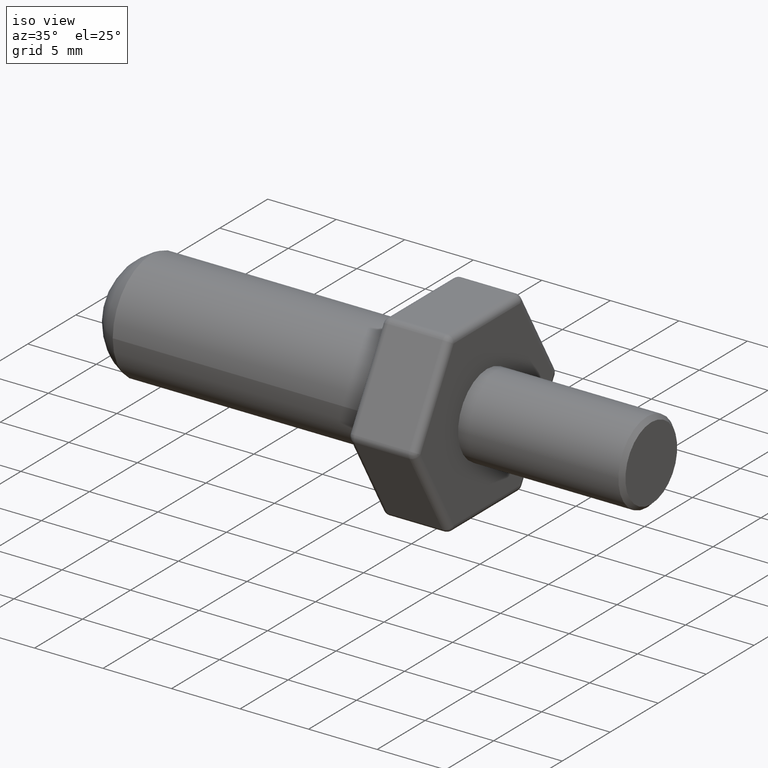
[diagram: clean part render]
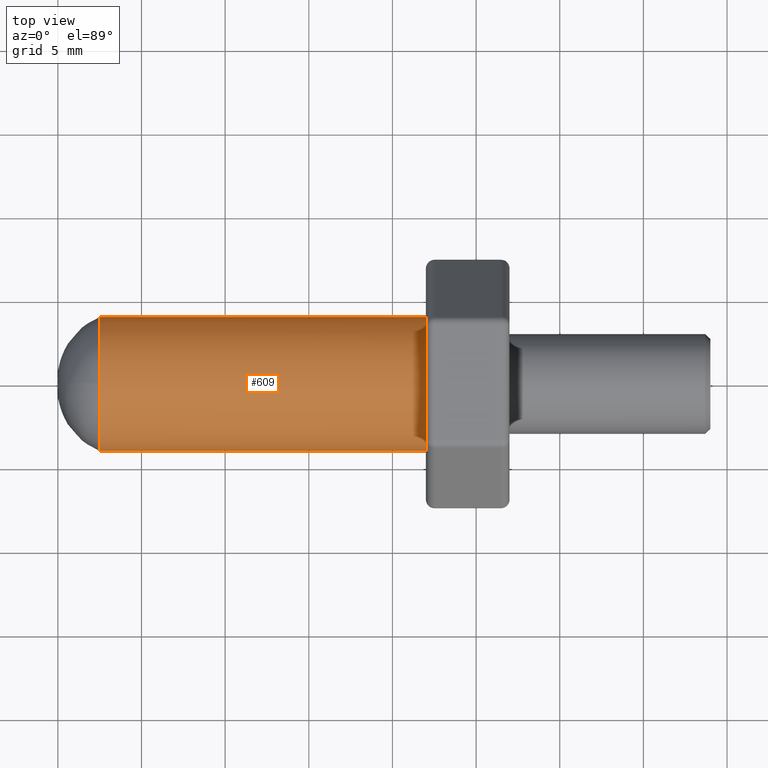
[diagram: tour spotlight — one face highlighted and labeled with its STEP entity id]
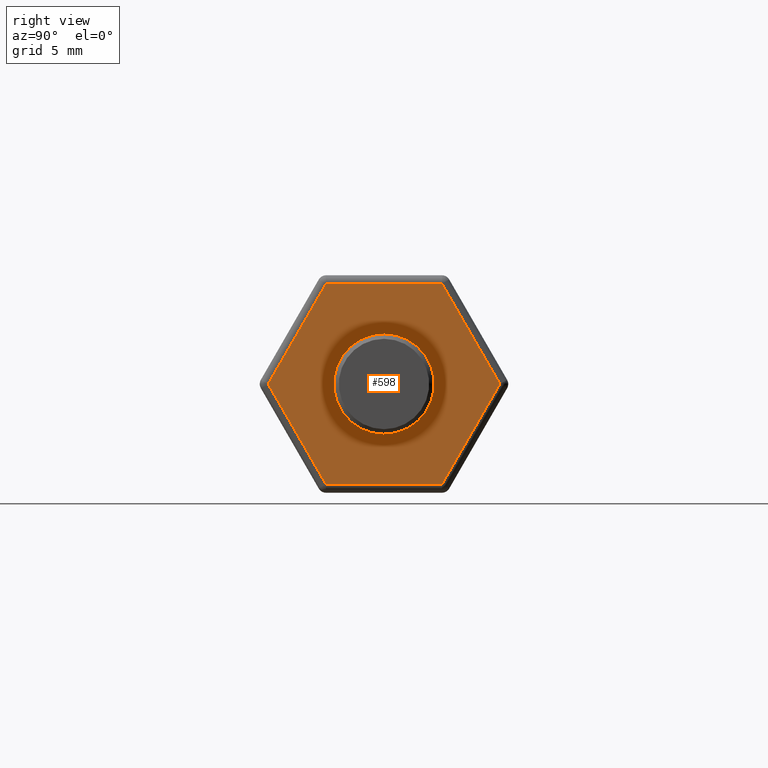
[diagram: tour spotlight — one face highlighted and labeled with its STEP entity id]
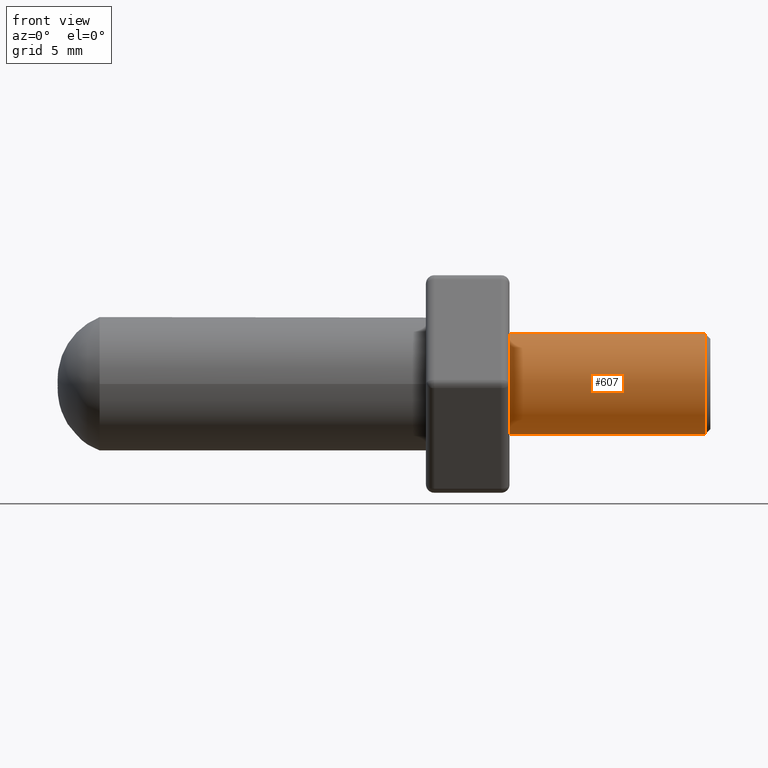
[diagram: tour spotlight — one face highlighted and labeled with its STEP entity id]
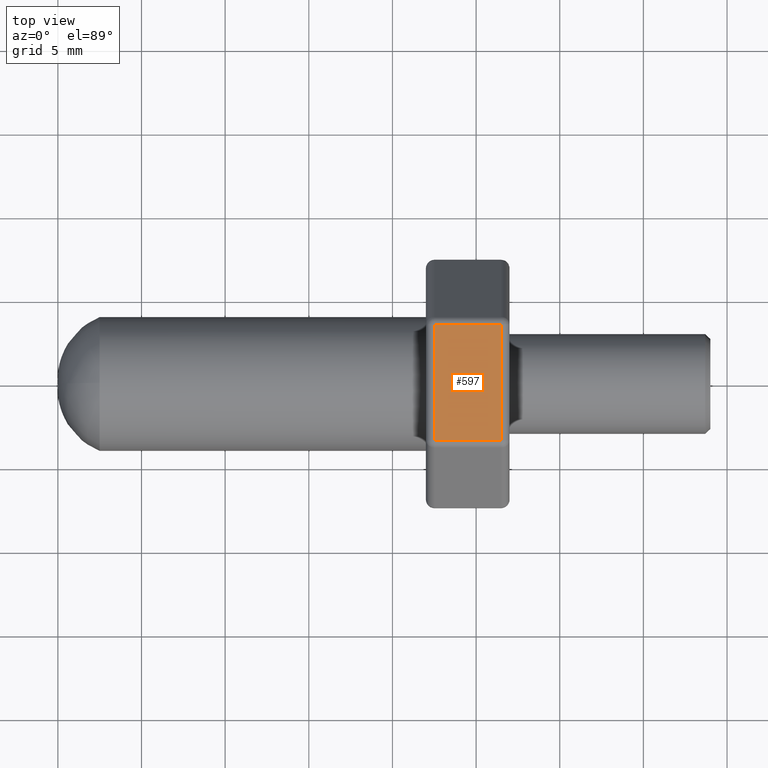
[diagram: tour spotlight — one face highlighted and labeled with its STEP entity id]
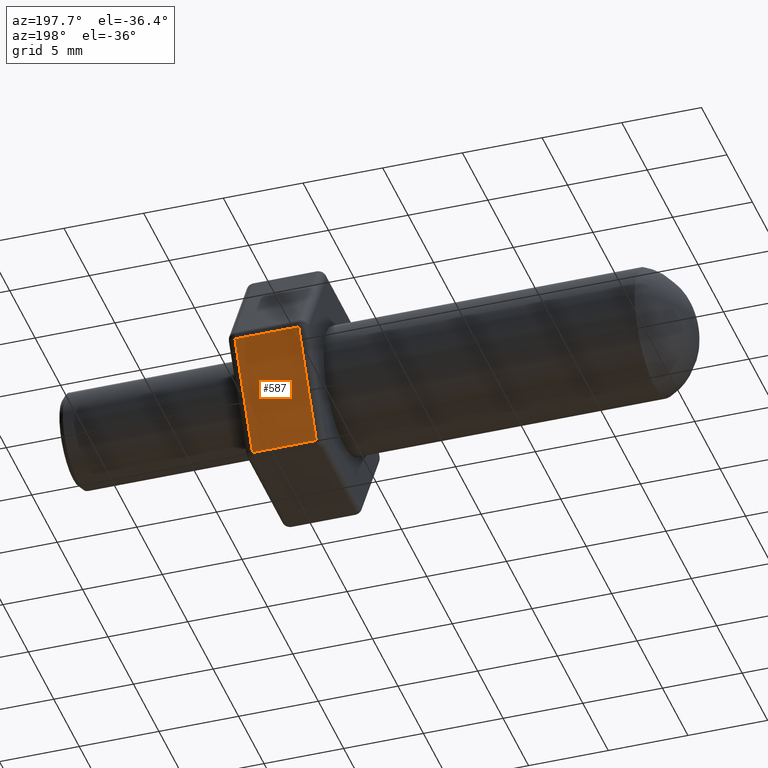
[diagram: tour spotlight — one face highlighted and labeled with its STEP entity id]
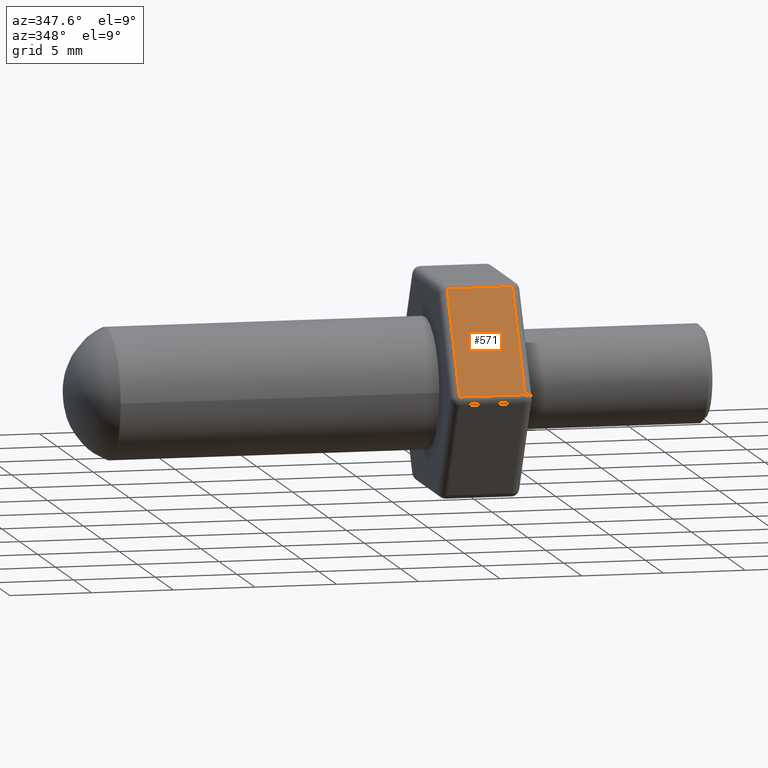
[diagram: tour spotlight — one face highlighted and labeled with its STEP entity id]
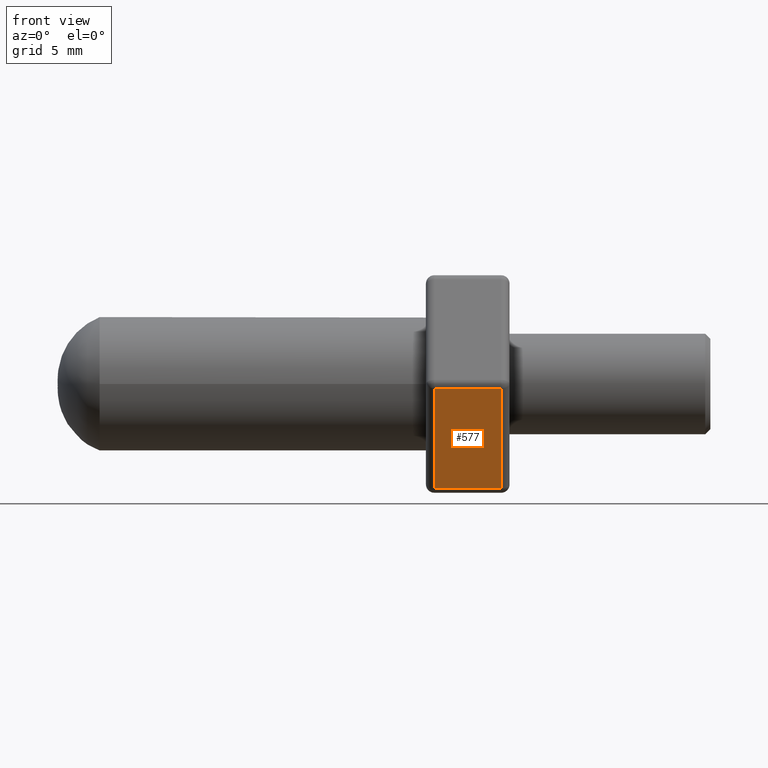
[diagram: tour spotlight — one face highlighted and labeled with its STEP entity id]
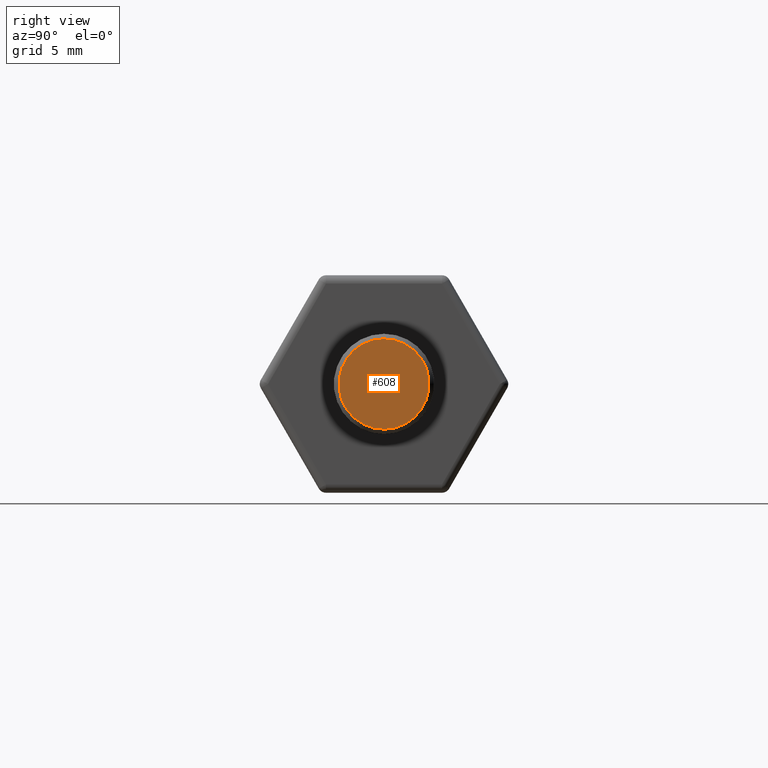
[diagram: tour spotlight — one face highlighted and labeled with its STEP entity id]
A machine part: a face-by-face anatomy tour. The part has 43 B-rep faces; the first image is the clean iso view, then the 8 largest visible faces are spotlighted one at a time (largest first), each with its STEP entity span.

Face 1 — top view, entity #609. In plain terms, the highlighted cylindrical surface (bore or boss wall) has radius 4 mm, axis along (1, 0, 0).
Definition (entity closure, byte-faithful):
#66=LINE('',#1097,#105);
#105=VECTOR('',#924,4.);
#125=CYLINDRICAL_SURFACE('',#713,4.);
#167=FACE_OUTER_BOUND('',#212,.T.);
#212=EDGE_LOOP('',(#544,#545,#546,#547,#548,#549,#550));
#251=CIRCLE('',#706,4.);
#252=CIRCLE('',#707,4.);
#255=CIRCLE('',#714,3.99999999999999);
#256=CIRCLE('',#715,3.99999999999999);
#257=CIRCLE('',#716,3.99999999999999);
#296=VERTEX_POINT('',#1082);
#297=VERTEX_POINT('',#1083);
#300=VERTEX_POINT('',#1096);
#301=VERTEX_POINT('',#1098);
#302=VERTEX_POINT('',#1100);
#377=EDGE_CURVE('',#296,#297,#251,.T.);
#378=EDGE_CURVE('',#297,#296,#252,.T.);
#383=EDGE_CURVE('',#297,#300,#66,.T.);
#384=EDGE_CURVE('',#300,#301,#255,.T.);
#385=EDGE_CURVE('',#301,#302,#256,.T.);
#386=EDGE_CURVE('',#302,#300,#257,.T.);
#544=ORIENTED_EDGE('',*,*,#377,.F.);
#545=ORIENTED_EDGE('',*,*,#378,.F.);
#546=ORIENTED_EDGE('',*,*,#383,.T.);
#547=ORIENTED_EDGE('',*,*,#384,.T.);
#548=ORIENTED_EDGE('',*,*,#385,.T.);
#549=ORIENTED_EDGE('',*,*,#386,.T.);
#550=ORIENTED_EDGE('',*,*,#383,.F.);
#609=ADVANCED_FACE('',(#167),#125,.T.);
#706=AXIS2_PLACEMENT_3D('',#1084,#906,#907);
#707=AXIS2_PLACEMENT_3D('',#1085,#908,#909);
#713=AXIS2_PLACEMENT_3D('',#1095,#922,#923);
#714=AXIS2_PLACEMENT_3D('',#1099,#925,#926);
#715=AXIS2_PLACEMENT_3D('',#1101,#927,#928);
#716=AXIS2_PLACEMENT_3D('',#1102,#929,#930);
#906=DIRECTION('center_axis',(1.,0.,0.));
#907=DIRECTION('ref_axis',(0.,1.,0.));
#908=DIRECTION('center_axis',(1.,0.,0.));
#909=DIRECTION('ref_axis',(0.,1.,0.));
#922=DIRECTION('center_axis',(1.,0.,0.));
#923=DIRECTION('ref_axis',(0.,1.,0.));
#924=DIRECTION('',(-1.,0.,0.));
#925=DIRECTION('center_axis',(1.,0.,0.));
#926=DIRECTION('ref_axis',(0.,1.,0.));
#927=DIRECTION('center_axis',(1.,0.,0.));
#928=DIRECTION('ref_axis',(0.,1.,0.));
#929=DIRECTION('center_axis',(1.,0.,0.));
#930=DIRECTION('ref_axis',(0.,1.,0.));
#1082=CARTESIAN_POINT('',(22.,4.,0.));
#1083=CARTESIAN_POINT('',(22.,-4.,-4.89858719658941E-16));
#1084=CARTESIAN_POINT('Origin',(22.,0.,0.));
#1085=CARTESIAN_POINT('Origin',(22.,0.,0.));
#1095=CARTESIAN_POINT('Origin',(12.25,0.,0.));
#1096=CARTESIAN_POINT('',(2.5,-4.,-4.89858719658941E-16));
#1097=CARTESIAN_POINT('',(12.25,-4.,-4.89858719658941E-16));
#1098=CARTESIAN_POINT('',(2.5,3.99999999999999,0.));
#1099=CARTESIAN_POINT('Origin',(2.5,0.,0.));
#1100=CARTESIAN_POINT('',(2.5,-4.89858719658941E-16,3.99999999999999));
#1101=CARTESIAN_POINT('Origin',(2.5,0.,0.));
#1102=CARTESIAN_POINT('Origin',(2.5,0.,0.));

Face 2 — right view, entity #598. In plain terms, the highlighted planar face has unit normal (1, 0, 0).
Definition (entity closure, byte-faithful):
#17=FACE_BOUND('',#200,.T.);
#25=PLANE('',#697);
#33=LINE('',#959,#72);
#35=LINE('',#966,#74);
#40=LINE('',#988,#79);
#45=LINE('',#1010,#84);
#50=LINE('',#1032,#89);
#55=LINE('',#1053,#94);
#72=VECTOR('',#747,10.);
#74=VECTOR('',#755,10.);
#79=VECTOR('',#782,10.);
#84=VECTOR('',#809,10.);
#89=VECTOR('',#836,10.);
#94=VECTOR('',#863,10.);
#156=FACE_OUTER_BOUND('',#199,.T.);
#199=EDGE_LOOP('',(#496,#497,#498,#499,#500,#501));
#200=EDGE_LOOP('',(#502));
#250=CIRCLE('',#698,3.);
#261=VERTEX_POINT('',#938);
#267=VERTEX_POINT('',#958);
#269=VERTEX_POINT('',#964);
#275=VERTEX_POINT('',#986);
#281=VERTEX_POINT('',#1008);
#287=VERTEX_POINT('',#1030);
#295=VERTEX_POINT('',#1067);
#315=EDGE_CURVE('',#261,#267,#33,.T.);
#319=EDGE_CURVE('',#269,#261,#35,.T.);
#330=EDGE_CURVE('',#275,#269,#40,.T.);
#341=EDGE_CURVE('',#281,#275,#45,.T.);
#352=EDGE_CURVE('',#287,#281,#50,.T.);
#363=EDGE_CURVE('',#267,#287,#55,.T.);
#370=EDGE_CURVE('',#295,#295,#250,.T.);
#496=ORIENTED_EDGE('',*,*,#330,.F.);
#497=ORIENTED_EDGE('',*,*,#341,.F.);
#498=ORIENTED_EDGE('',*,*,#352,.F.);
#499=ORIENTED_EDGE('',*,*,#363,.F.);
#500=ORIENTED_EDGE('',*,*,#315,.F.);
#501=ORIENTED_EDGE('',*,*,#319,.F.);
#502=ORIENTED_EDGE('',*,*,#370,.T.);
#598=ADVANCED_FACE('',(#156,#17),#25,.T.);
#697=AXIS2_PLACEMENT_3D('',#1066,#882,#883);
#698=AXIS2_PLACEMENT_3D('',#1068,#884,#885);
#747=DIRECTION('',(0.,0.5,0.866025403784439));
#755=DIRECTION('',(0.,-0.5,0.866025403784439));
#782=DIRECTION('',(0.,-1.,1.4792020664489E-16));
#809=DIRECTION('',(0.,-0.5,-0.866025403784439));
#836=DIRECTION('',(0.,0.5,-0.866025403784438));
#863=DIRECTION('',(0.,1.,2.95840413289779E-16));
#882=DIRECTION('center_axis',(1.,0.,0.));
#883=DIRECTION('ref_axis',(0.,0.,-1.));
#884=DIRECTION('center_axis',(-1.,0.,0.));
#885=DIRECTION('ref_axis',(0.,0.,1.));
#938=CARTESIAN_POINT('',(27.,-6.92820323027551,-2.77555756156289E-15));
#958=CARTESIAN_POINT('',(27.,-3.46410161513776,6.));
#959=CARTESIAN_POINT('',(27.,-4.25795823527349,4.625));
#964=CARTESIAN_POINT('',(27.,-3.46410161513776,-6.));
#966=CARTESIAN_POINT('',(27.,-6.13434661013978,-1.375));
#986=CARTESIAN_POINT('',(27.,3.46410161513775,-6.));
#988=CARTESIAN_POINT('',(27.,-1.87638837486628,-6.));
#1008=CARTESIAN_POINT('',(27.,6.92820323027551,3.33066907387547E-15));
#1010=CARTESIAN_POINT('',(27.,4.25795823527349,-4.625));
#1030=CARTESIAN_POINT('',(27.,3.46410161513775,6.));
#1032=CARTESIAN_POINT('',(27.,6.13434661013978,1.375));
#1053=CARTESIAN_POINT('',(27.,1.87638837486628,6.));
#1066=CARTESIAN_POINT('Origin',(27.,0.,9.2450129153056E-17));
#1067=CARTESIAN_POINT('',(27.,3.67394039744206E-16,-3.));
#1068=CARTESIAN_POINT('Origin',(27.,0.,0.));

Face 3 — front view, entity #607. In plain terms, the highlighted cylindrical surface (bore or boss wall) has radius 3 mm, axis along (1, 0, 0).
Definition (entity closure, byte-faithful):
#65=LINE('',#1093,#104);
#104=VECTOR('',#919,3.);
#124=CYLINDRICAL_SURFACE('',#711,3.);
#165=FACE_OUTER_BOUND('',#210,.T.);
#210=EDGE_LOOP('',(#539,#540,#541,#542));
#250=CIRCLE('',#698,3.);
#254=CIRCLE('',#710,3.);
#295=VERTEX_POINT('',#1067);
#299=VERTEX_POINT('',#1089);
#370=EDGE_CURVE('',#295,#295,#250,.T.);
#381=EDGE_CURVE('',#299,#299,#254,.T.);
#382=EDGE_CURVE('',#299,#295,#65,.T.);
#539=ORIENTED_EDGE('',*,*,#381,.F.);
#540=ORIENTED_EDGE('',*,*,#382,.T.);
#541=ORIENTED_EDGE('',*,*,#370,.F.);
#542=ORIENTED_EDGE('',*,*,#382,.F.);
#607=ADVANCED_FACE('',(#165),#124,.T.);
#698=AXIS2_PLACEMENT_3D('',#1068,#884,#885);
#710=AXIS2_PLACEMENT_3D('',#1091,#915,#916);
#711=AXIS2_PLACEMENT_3D('',#1092,#917,#918);
#884=DIRECTION('center_axis',(-1.,0.,0.));
#885=DIRECTION('ref_axis',(0.,0.,1.));
#915=DIRECTION('center_axis',(1.,0.,0.));
#916=DIRECTION('ref_axis',(0.,0.,1.));
#917=DIRECTION('center_axis',(1.,0.,0.));
#918=DIRECTION('ref_axis',(0.,0.,1.));
#919=DIRECTION('',(-1.,0.,0.));
#1067=CARTESIAN_POINT('',(27.,3.67394039744206E-16,-3.));
#1068=CARTESIAN_POINT('Origin',(27.,0.,0.));
#1089=CARTESIAN_POINT('',(38.7,3.67394039744206E-16,-3.));
#1091=CARTESIAN_POINT('Origin',(38.7,0.,0.));
#1092=CARTESIAN_POINT('Origin',(27.,0.,0.));
#1093=CARTESIAN_POINT('',(27.,3.67394039744206E-16,-3.));

Face 4 — top view, entity #597. In plain terms, the highlighted planar face has unit normal (0, -0, 1).
Definition (entity closure, byte-faithful):
#24=PLANE('',#696);
#51=LINE('',#1041,#90);
#54=LINE('',#1051,#93);
#56=LINE('',#1059,#95);
#57=LINE('',#1065,#96);
#90=VECTOR('',#847,10.);
#93=VECTOR('',#860,10.);
#95=VECTOR('',#872,10.);
#96=VECTOR('',#881,10.);
#155=FACE_OUTER_BOUND('',#198,.T.);
#198=EDGE_LOOP('',(#492,#493,#494,#495));
#288=VERTEX_POINT('',#1034);
#290=VERTEX_POINT('',#1039);
#292=VERTEX_POINT('',#1050);
#293=VERTEX_POINT('',#1057);
#356=EDGE_CURVE('',#290,#288,#51,.T.);
#361=EDGE_CURVE('',#288,#292,#54,.T.);
#366=EDGE_CURVE('',#292,#293,#56,.T.);
#369=EDGE_CURVE('',#293,#290,#57,.T.);
#492=ORIENTED_EDGE('',*,*,#356,.F.);
#493=ORIENTED_EDGE('',*,*,#369,.F.);
#494=ORIENTED_EDGE('',*,*,#366,.F.);
#495=ORIENTED_EDGE('',*,*,#361,.F.);
#597=ADVANCED_FACE('',(#155),#24,.T.);
#696=AXIS2_PLACEMENT_3D('',#1064,#879,#880);
#847=DIRECTION('',(1.,0.,0.));
#860=DIRECTION('',(0.,-1.,-2.95840413289779E-16));
#872=DIRECTION('',(-1.,0.,0.));
#879=DIRECTION('center_axis',(0.,-2.95840413289779E-16,1.));
#880=DIRECTION('ref_axis',(0.,-1.,-2.95840413289779E-16));
#881=DIRECTION('',(0.,1.,2.95840413289779E-16));
#1034=CARTESIAN_POINT('',(26.5,3.46410161513775,6.5));
#1039=CARTESIAN_POINT('',(22.5,3.46410161513775,6.5));
#1041=CARTESIAN_POINT('',(22.,3.46410161513775,6.5));
#1050=CARTESIAN_POINT('',(26.5,-3.46410161513776,6.5));
#1051=CARTESIAN_POINT('',(26.5,1.87638837486628,6.5));
#1057=CARTESIAN_POINT('',(22.5,-3.46410161513776,6.5));
#1059=CARTESIAN_POINT('',(22.,-3.46410161513776,6.5));
#1064=CARTESIAN_POINT('Origin',(22.,3.75277674973257,6.5));
#1065=CARTESIAN_POINT('',(22.5,1.87638837486628,6.5));

Face 5 — auxiliary view, entity #587. In plain terms, the highlighted planar face has unit normal (0, 0.866, -0.5).
Definition (entity closure, byte-faithful):
#22=PLANE('',#675);
#41=LINE('',#997,#80);
#44=LINE('',#1007,#83);
#47=LINE('',#1020,#86);
#48=LINE('',#1026,#87);
#80=VECTOR('',#793,10.);
#83=VECTOR('',#806,10.);
#86=VECTOR('',#821,10.);
#87=VECTOR('',#830,10.);
#145=FACE_OUTER_BOUND('',#188,.T.);
#188=EDGE_LOOP('',(#456,#457,#458,#459));
#276=VERTEX_POINT('',#990);
#278=VERTEX_POINT('',#995);
#280=VERTEX_POINT('',#1006);
#283=VERTEX_POINT('',#1016);
#334=EDGE_CURVE('',#278,#276,#41,.T.);
#339=EDGE_CURVE('',#276,#280,#44,.T.);
#346=EDGE_CURVE('',#280,#283,#47,.T.);
#349=EDGE_CURVE('',#283,#278,#48,.T.);
#456=ORIENTED_EDGE('',*,*,#334,.F.);
#457=ORIENTED_EDGE('',*,*,#349,.F.);
#458=ORIENTED_EDGE('',*,*,#346,.F.);
#459=ORIENTED_EDGE('',*,*,#339,.F.);
#587=ADVANCED_FACE('',(#145),#22,.T.);
#675=AXIS2_PLACEMENT_3D('',#1025,#828,#829);
#793=DIRECTION('',(1.,0.,0.));
#806=DIRECTION('',(0.,0.5,0.866025403784439));
#821=DIRECTION('',(-1.,0.,0.));
#828=DIRECTION('center_axis',(0.,0.866025403784439,-0.5));
#829=DIRECTION('ref_axis',(0.,0.5,0.866025403784439));
#830=DIRECTION('',(0.,-0.5,-0.866025403784439));
#990=CARTESIAN_POINT('',(26.5,3.89711431702997,-6.25));
#995=CARTESIAN_POINT('',(22.5,3.89711431702997,-6.25));
#997=CARTESIAN_POINT('',(22.,3.89711431702997,-6.25));
#1006=CARTESIAN_POINT('',(26.5,7.36121593216773,-0.249999999999995));
#1007=CARTESIAN_POINT('',(26.5,4.69097093716571,-4.875));
#1016=CARTESIAN_POINT('',(22.5,7.36121593216773,-0.249999999999996));
#1020=CARTESIAN_POINT('',(22.,7.36121593216773,-0.249999999999997));
#1025=CARTESIAN_POINT('Origin',(22.,3.75277674973257,-6.5));
#1026=CARTESIAN_POINT('',(22.5,4.69097093716571,-4.875));

Face 6 — auxiliary view, entity #571. In plain terms, the highlighted planar face has unit normal (0, -0.866, 0.5).
Definition (entity closure, byte-faithful):
#19=PLANE('',#640);
#29=LINE('',#946,#68);
#30=LINE('',#953,#69);
#31=LINE('',#955,#70);
#32=LINE('',#956,#71);
#68=VECTOR('',#733,10.);
#69=VECTOR('',#742,10.);
#70=VECTOR('',#743,10.);
#71=VECTOR('',#744,10.);
#129=FACE_OUTER_BOUND('',#172,.T.);
#172=EDGE_LOOP('',(#398,#399,#400,#401));
#259=VERTEX_POINT('',#935);
#262=VERTEX_POINT('',#942);
#265=VERTEX_POINT('',#952);
#266=VERTEX_POINT('',#954);
#309=EDGE_CURVE('',#259,#262,#29,.T.);
#312=EDGE_CURVE('',#265,#259,#30,.T.);
#313=EDGE_CURVE('',#266,#265,#31,.T.);
#314=EDGE_CURVE('',#262,#266,#32,.T.);
#398=ORIENTED_EDGE('',*,*,#309,.F.);
#399=ORIENTED_EDGE('',*,*,#312,.F.);
#400=ORIENTED_EDGE('',*,*,#313,.F.);
#401=ORIENTED_EDGE('',*,*,#314,.F.);
#571=ADVANCED_FACE('',(#129),#19,.T.);
#640=AXIS2_PLACEMENT_3D('',#951,#740,#741);
#733=DIRECTION('',(-1.,0.,0.));
#740=DIRECTION('center_axis',(0.,-0.866025403784439,0.5));
#741=DIRECTION('ref_axis',(0.,-0.5,-0.866025403784439));
#742=DIRECTION('',(0.,-0.5,-0.866025403784439));
#743=DIRECTION('',(1.,0.,0.));
#744=DIRECTION('',(0.,0.5,0.866025403784439));
#935=CARTESIAN_POINT('',(26.5,-7.36121593216773,0.249999999999996));
#942=CARTESIAN_POINT('',(22.5,-7.36121593216773,0.249999999999998));
#946=CARTESIAN_POINT('',(22.,-7.36121593216773,0.249999999999999));
#951=CARTESIAN_POINT('Origin',(22.,-3.75277674973257,6.5));
#952=CARTESIAN_POINT('',(26.5,-3.89711431702997,6.25));
#953=CARTESIAN_POINT('',(26.5,-4.69097093716571,4.875));
#954=CARTESIAN_POINT('',(22.5,-3.89711431702998,6.25));
#955=CARTESIAN_POINT('',(22.,-3.89711431702998,6.25));
#956=CARTESIAN_POINT('',(22.5,-4.69097093716571,4.875));

Face 7 — front view, entity #577. In plain terms, the highlighted planar face has unit normal (0, -0.866, -0.5).
Definition (entity closure, byte-faithful):
#20=PLANE('',#653);
#28=LINE('',#945,#67);
#34=LINE('',#963,#73);
#37=LINE('',#976,#76);
#38=LINE('',#982,#77);
#67=VECTOR('',#732,10.);
#73=VECTOR('',#752,10.);
#76=VECTOR('',#767,10.);
#77=VECTOR('',#776,10.);
#135=FACE_OUTER_BOUND('',#178,.T.);
#178=EDGE_LOOP('',(#420,#421,#422,#423));
#260=VERTEX_POINT('',#936);
#263=VERTEX_POINT('',#943);
#268=VERTEX_POINT('',#962);
#271=VERTEX_POINT('',#972);
#308=EDGE_CURVE('',#263,#260,#28,.T.);
#317=EDGE_CURVE('',#260,#268,#34,.T.);
#324=EDGE_CURVE('',#268,#271,#37,.T.);
#327=EDGE_CURVE('',#271,#263,#38,.T.);
#420=ORIENTED_EDGE('',*,*,#308,.F.);
#421=ORIENTED_EDGE('',*,*,#327,.F.);
#422=ORIENTED_EDGE('',*,*,#324,.F.);
#423=ORIENTED_EDGE('',*,*,#317,.F.);
#577=ADVANCED_FACE('',(#135),#20,.T.);
#653=AXIS2_PLACEMENT_3D('',#981,#774,#775);
#732=DIRECTION('',(1.,0.,0.));
#752=DIRECTION('',(0.,0.5,-0.866025403784439));
#767=DIRECTION('',(-1.,0.,0.));
#774=DIRECTION('center_axis',(0.,-0.866025403784439,-0.5));
#775=DIRECTION('ref_axis',(0.,0.5,-0.866025403784439));
#776=DIRECTION('',(0.,-0.5,0.866025403784439));
#936=CARTESIAN_POINT('',(26.5,-7.36121593216773,-0.250000000000001));
#943=CARTESIAN_POINT('',(22.5,-7.36121593216773,-0.250000000000001));
#945=CARTESIAN_POINT('',(22.,-7.36121593216773,-0.250000000000001));
#962=CARTESIAN_POINT('',(26.5,-3.89711431702998,-6.25));
#963=CARTESIAN_POINT('',(26.5,-6.56735931203199,-1.625));
#972=CARTESIAN_POINT('',(22.5,-3.89711431702998,-6.25));
#976=CARTESIAN_POINT('',(22.,-3.89711431702997,-6.25));
#981=CARTESIAN_POINT('Origin',(22.,-7.50555349946514,0.));
#982=CARTESIAN_POINT('',(22.5,-6.56735931203199,-1.625));

Face 8 — right view, entity #608. In plain terms, the highlighted planar face has unit normal (1, 0, 0).
Definition (entity closure, byte-faithful):
#27=PLANE('',#712);
#166=FACE_OUTER_BOUND('',#211,.T.);
#211=EDGE_LOOP('',(#543));
#253=CIRCLE('',#709,2.7);
#298=VERTEX_POINT('',#1087);
#379=EDGE_CURVE('',#298,#298,#253,.T.);
#543=ORIENTED_EDGE('',*,*,#379,.F.);
#608=ADVANCED_FACE('',(#166),#27,.T.);
#709=AXIS2_PLACEMENT_3D('',#1088,#912,#913);
#712=AXIS2_PLACEMENT_3D('',#1094,#920,#921);
#912=DIRECTION('center_axis',(-1.,0.,0.));
#913=DIRECTION('ref_axis',(0.,0.,1.));
#920=DIRECTION('center_axis',(1.,0.,0.));
#921=DIRECTION('ref_axis',(0.,0.,-1.));
#1087=CARTESIAN_POINT('',(39.,-3.30654635769785E-16,-2.7));
#1088=CARTESIAN_POINT('Origin',(39.,0.,0.));
#1094=CARTESIAN_POINT('Origin',(39.,-7.70988211545247E-17,1.84813812287733E-16));